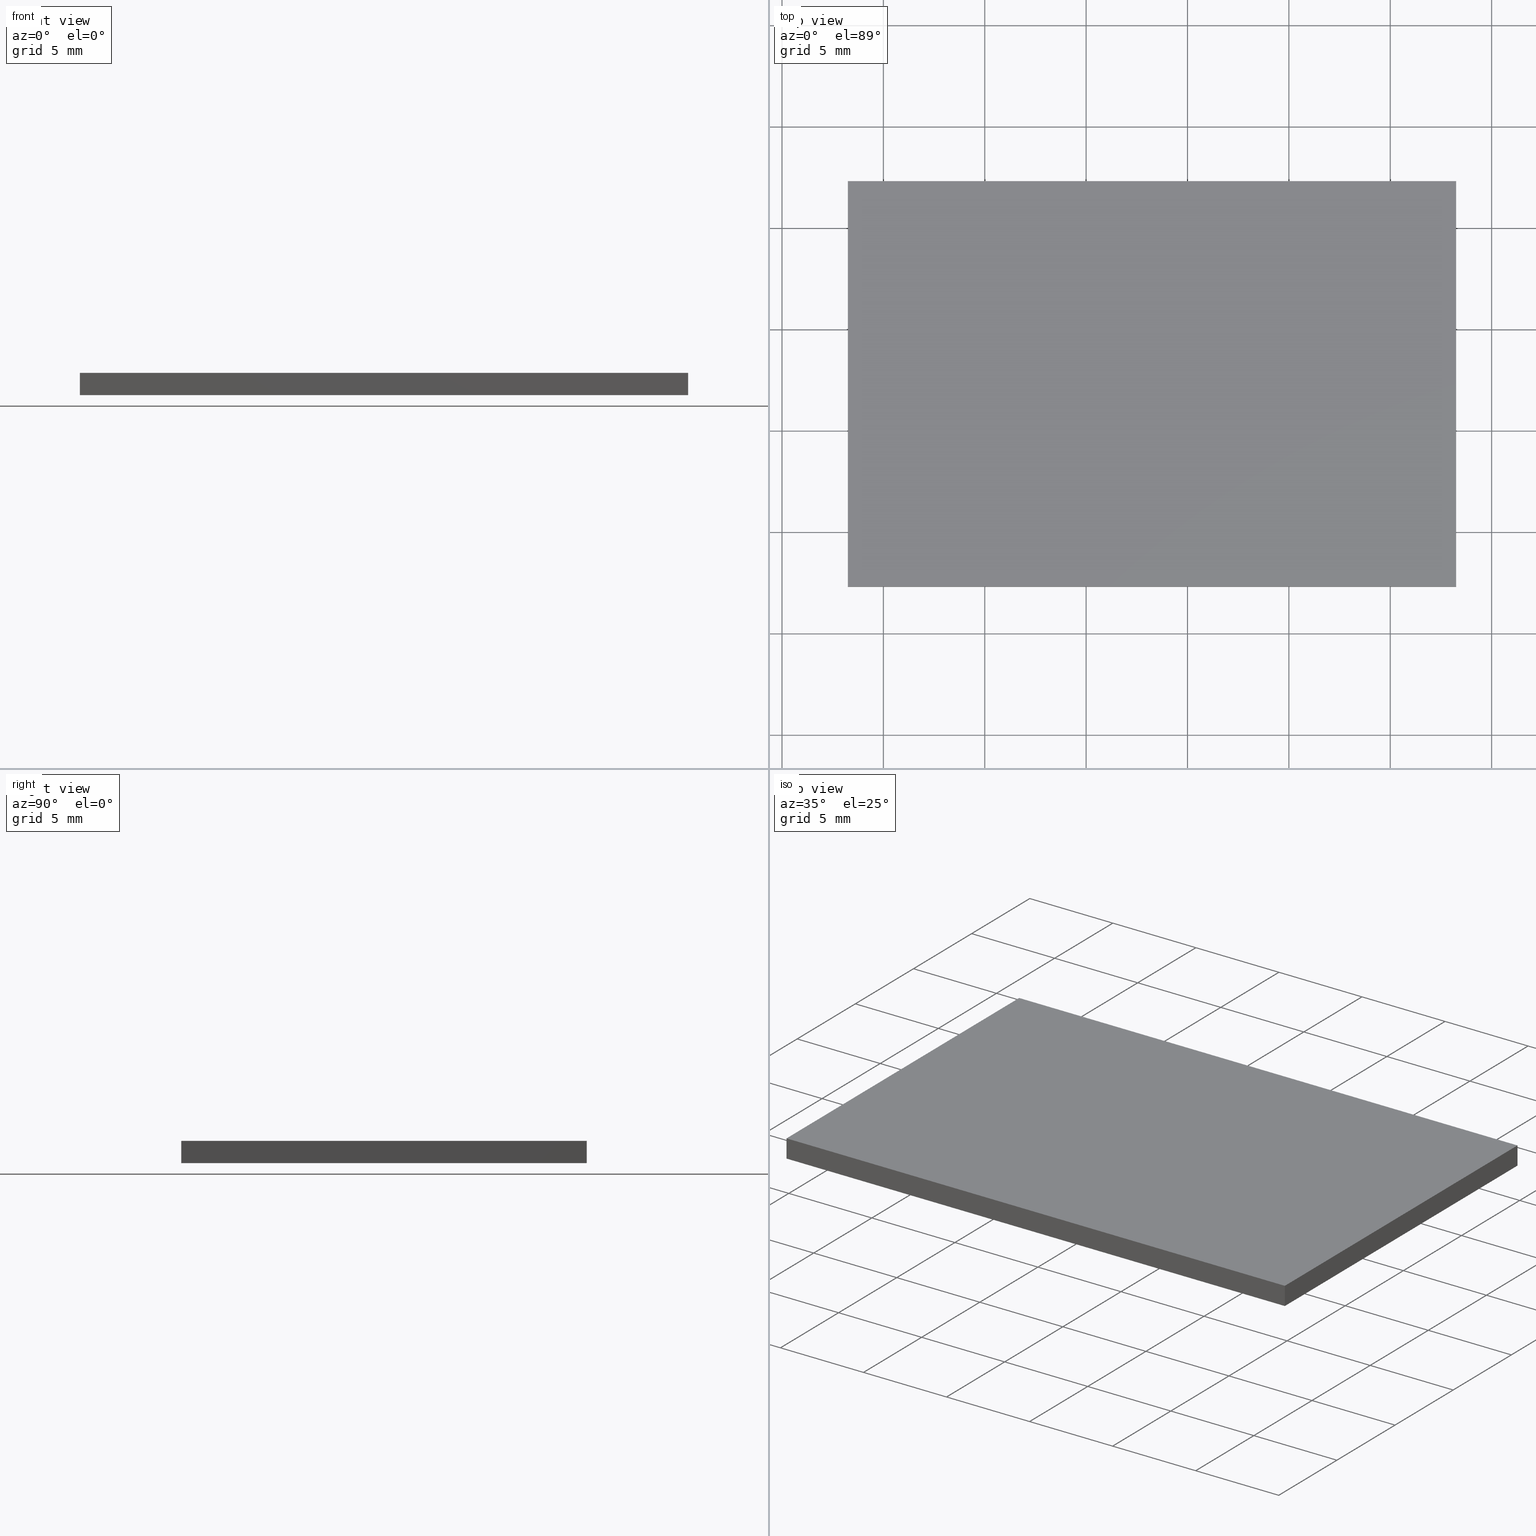
[diagram: canonical four-view strip — front | top / right | iso, engineering-drawing reading convention]
A machine part, canonical four-view strip (front | top / right | iso — engineering-drawing reading convention). The complete STEP part file that produces these views, byte-faithful:
ISO-10303-21;
HEADER;
FILE_DESCRIPTION (( 'STEP AP203' ),
    '1' );
FILE_NAME ('348504.STEP',
    '2019-07-31T07:18:48',
    ( '' ),
    ( '' ),
    'SwSTEP 2.0',
    'SolidWorks 2016',
    '' );
FILE_SCHEMA (( 'CONFIG_CONTROL_DESIGN' ));
ENDSEC;

DATA;
#1 = CARTESIAN_POINT ( 'NONE',  ( 18.24871321396390700, -7.690632713374410100, 0.0000000000000000000 ) ) ;
#2 = CC_DESIGN_SECURITY_CLASSIFICATION ( #266, ( #39 ) ) ;
#3 = ORIENTED_EDGE ( 'NONE', *, *, #36, .T. ) ;
#4 = VERTEX_POINT ( 'NONE', #248 ) ;
#5 = EDGE_CURVE ( 'NONE', #4, #204, #113, .T. ) ;
#6 = VECTOR ( 'NONE', #92, 1000.000000000000000 ) ;
#7 = PERSON_AND_ORGANIZATION_ROLE ( 'design_supplier' ) ;
#8 = APPLICATION_PROTOCOL_DEFINITION ( 'international standard', 'config_control_design', 1994, #156 ) ;
#9 = ORIENTED_EDGE ( 'NONE', *, *, #57, .T. ) ;
#10 = EDGE_LOOP ( 'NONE', ( #313, #280, #281, #107 ) ) ;
#11 = APPROVAL ( #166, 'δָ��' ) ;
#12 = COORDINATED_UNIVERSAL_TIME_OFFSET ( 8, 0, .AHEAD. ) ;
#13 = FACE_OUTER_BOUND ( 'NONE', #10, .T. ) ;
#14 = CC_DESIGN_DATE_AND_TIME_ASSIGNMENT ( #262, #306, ( #101 ) ) ;
#15 = VERTEX_POINT ( 'NONE', #226 ) ;
#16 = VECTOR ( 'NONE', #172, 1000.000000000000000 ) ;
#17 = DIRECTION ( 'NONE',  ( 1.734723475976807100E-016, -1.000000000000000000, 0.0000000000000000000 ) ) ;
#18 = AXIS2_PLACEMENT_3D ( 'NONE', #126, #299, #152 ) ;
#19 = PERSON_AND_ORGANIZATION ( #85, #253 ) ;
#20 = LINE ( 'NONE', #176, #279 ) ;
#21 = EDGE_CURVE ( 'NONE', #289, #79, #159, .T. ) ;
#22 = PLANE ( 'NONE',  #218 ) ;
#23 = CARTESIAN_POINT ( 'NONE',  ( -11.75128678603609700, 12.30936728662558900, 1.100000000000000100 ) ) ;
#24 = ORIENTED_EDGE ( 'NONE', *, *, #157, .F. ) ;
#25 = PERSON_AND_ORGANIZATION ( #85, #253 ) ;
#26 = ORIENTED_EDGE ( 'NONE', *, *, #129, .T. ) ;
#27 = PLANE ( 'NONE',  #155 ) ;
#28 = CC_DESIGN_DATE_AND_TIME_ASSIGNMENT ( #292, #208, ( #162 ) ) ;
#29 = APPLICATION_PROTOCOL_DEFINITION ( 'international standard', 'config_control_design', 1994, #301 ) ;
#30 = CARTESIAN_POINT ( 'NONE',  ( -11.75128678603609300, -7.690632713374410100, 1.100000000000000100 ) ) ;
#31 = LOCAL_TIME ( 15, 18, 48.00000000000000000, #153 ) ;
#32 = PERSON_AND_ORGANIZATION ( #85, #253 ) ;
#33 = LOCAL_TIME ( 15, 18, 48.00000000000000000, #246 ) ;
#34 = ORIENTED_EDGE ( 'NONE', *, *, #42, .F. ) ;
#35 = APPROVAL ( #80, 'δָ��' ) ;
#36 = EDGE_CURVE ( 'NONE', #204, #15, #121, .T. ) ;
#37 = CALENDAR_DATE ( 2019, 31, 7 ) ;
#38 = ORIENTED_EDGE ( 'NONE', *, *, #103, .F. ) ;
#39 = PRODUCT_DEFINITION_FORMATION_WITH_SPECIFIED_SOURCE ( '�κ�', '', #212, .NOT_KNOWN. ) ;
#40 = DATE_AND_TIME ( #236, #215 ) ;
#41 = CARTESIAN_POINT ( 'NONE',  ( 0.0000000000000000000, 0.0000000000000000000, 1.100000000000000100 ) ) ;
#42 = EDGE_CURVE ( 'NONE', #204, #66, #46, .T. ) ;
#43 = CALENDAR_DATE ( 2019, 31, 7 ) ;
#44 = DIRECTION ( 'NONE',  ( -1.000000000000000000, -0.0000000000000000000, -0.0000000000000000000 ) ) ;
#45 = APPROVAL_PERSON_ORGANIZATION ( #112, #169, #249 ) ;
#46 = LINE ( 'NONE', #223, #264 ) ;
#47 = DIRECTION ( 'NONE',  ( -0.0000000000000000000, -0.0000000000000000000, -1.000000000000000000 ) ) ;
#48 = DATE_TIME_ROLE ( 'classification_date' ) ;
#49 = APPLICATION_CONTEXT ( 'configuration controlled 3d designs of mechanical parts and assemblies' ) ;
#50 = LOCAL_TIME ( 15, 18, 48.00000000000000000, #55 ) ;
#51 = DATE_TIME_ROLE ( 'creation_date' ) ;
#52 = MECHANICAL_CONTEXT ( 'NONE', #156, 'mechanical' ) ;
#53 = CC_DESIGN_PERSON_AND_ORGANIZATION_ASSIGNMENT ( #265, #275, ( #130 ) ) ;
#54 = CARTESIAN_POINT ( 'NONE',  ( 0.0000000000000000000, 0.0000000000000000000, 0.0000000000000000000 ) ) ;
#55 = COORDINATED_UNIVERSAL_TIME_OFFSET ( 8, 0, .AHEAD. ) ;
#56 = VECTOR ( 'NONE', #221, 1000.000000000000000 ) ;
#57 = EDGE_CURVE ( 'NONE', #66, #225, #205, .T. ) ;
#58 = APPROVAL_DATE_TIME ( #308, #11 ) ;
#59 = CC_DESIGN_APPROVAL ( #35, ( #39 ) ) ;
#60 = EDGE_CURVE ( 'NONE', #79, #133, #134, .T. ) ;
#61 = PERSON_AND_ORGANIZATION_ROLE ( 'design_supplier' ) ;
#62 = ADVANCED_FACE ( 'NONE', ( #303 ), #267, .F. ) ;
#63 = APPROVAL_PERSON_ORGANIZATION ( #104, #11, #193 ) ;
#64 = COORDINATED_UNIVERSAL_TIME_OFFSET ( 8, 0, .AHEAD. ) ;
#65 = EDGE_LOOP ( 'NONE', ( #77, #213, #196, #91 ) ) ;
#66 = VERTEX_POINT ( 'NONE', #142 ) ;
#67 = ORIENTED_EDGE ( 'NONE', *, *, #21, .F. ) ;
#68 = FACE_OUTER_BOUND ( 'NONE', #287, .T. ) ;
#69 = CC_DESIGN_PERSON_AND_ORGANIZATION_ASSIGNMENT ( #198, #61, ( #290 ) ) ;
#70 = CARTESIAN_POINT ( 'NONE',  ( -11.75128678603609700, 12.30936728662558900, 1.100000000000000100 ) ) ;
#71 = APPROVAL ( #183, 'δָ��' ) ;
#72 = COORDINATED_UNIVERSAL_TIME_OFFSET ( 8, 0, .AHEAD. ) ;
#73 = PERSON_AND_ORGANIZATION ( #85, #253 ) ;
#74 = DIRECTION ( 'NONE',  ( 1.000000000000000000, 0.0000000000000000000, 0.0000000000000000000 ) ) ;
#75 = DIRECTION ( 'NONE',  ( -1.734723475976807100E-016, 1.000000000000000000, -0.0000000000000000000 ) ) ;
#76 = CARTESIAN_POINT ( 'NONE',  ( -11.75128678603609700, 12.30936728662558900, 0.0000000000000000000 ) ) ;
#77 = ORIENTED_EDGE ( 'NONE', *, *, #93, .T. ) ;
#78 = DIRECTION ( 'NONE',  ( 0.0000000000000000000, 0.0000000000000000000, 1.000000000000000000 ) ) ;
#79 = VERTEX_POINT ( 'NONE', #272 ) ;
#80 = APPROVAL_STATUS ( 'not_yet_approved' ) ;
#81 = CC_DESIGN_PERSON_AND_ORGANIZATION_ASSIGNMENT ( #273, #231, ( #39 ) ) ;
#82 =( LENGTH_UNIT ( ) NAMED_UNIT ( * ) SI_UNIT ( .MILLI., .METRE. ) );
#83 = DIRECTION ( 'NONE',  ( 1.000000000000000000, 0.0000000000000000000, 0.0000000000000000000 ) ) ;
#84 = DIRECTION ( 'NONE',  ( 1.734723475976806800E-016, -1.000000000000000000, 0.0000000000000000000 ) ) ;
#85 = PERSON ( 'δָ��', 'δָ��', 'δָ��', ('δָ��'), ('δָ��'), ('δָ��') ) ;
#86 = FACE_OUTER_BOUND ( 'NONE', #259, .T. ) ;
#87 = ORIENTED_EDGE ( 'NONE', *, *, #157, .T. ) ;
#88 = CALENDAR_DATE ( 2019, 31, 7 ) ;
#89 = CC_DESIGN_APPROVAL ( #71, ( #162 ) ) ;
#90 = DESIGN_CONTEXT ( 'detailed design', #209, 'design' ) ;
#91 = ORIENTED_EDGE ( 'NONE', *, *, #122, .T. ) ;
#92 = DIRECTION ( 'NONE',  ( 1.734723475976807100E-016, -1.000000000000000000, 0.0000000000000000000 ) ) ;
#93 = EDGE_CURVE ( 'NONE', #133, #15, #168, .T. ) ;
#94 = DIRECTION ( 'NONE',  ( -1.734723475976806800E-016, 1.000000000000000000, 0.0000000000000000000 ) ) ;
#95 = DIRECTION ( 'NONE',  ( -1.000000000000000000, -0.0000000000000000000, -0.0000000000000000000 ) ) ;
#96 = DATE_AND_TIME ( #188, #31 ) ;
#97 = ORIENTED_EDGE ( 'NONE', *, *, #178, .T. ) ;
#98 = DIRECTION ( 'NONE',  ( -1.000000000000000000, -1.734723475976806800E-016, 0.0000000000000000000 ) ) ;
#99 = DIRECTION ( 'NONE',  ( -0.0000000000000000000, 0.0000000000000000000, 1.000000000000000000 ) ) ;
#100 = UNCERTAINTY_MEASURE_WITH_UNIT (LENGTH_MEASURE( 1.000000000000000100E-005 ), #82, 'distance_accuracy_value', 'NONE');
#101 = SECURITY_CLASSIFICATION ( '', '', #240 ) ;
#102 = CARTESIAN_POINT ( 'NONE',  ( -11.75128678603609300, -7.690632713374410100, 1.100000000000000100 ) ) ;
#103 = EDGE_CURVE ( 'NONE', #15, #225, #217, .T. ) ;
#104 = PERSON_AND_ORGANIZATION ( #85, #253 ) ;
#105 = LINE ( 'NONE', #124, #161 ) ;
#106 = LOCAL_TIME ( 15, 18, 48.00000000000000000, #241 ) ;
#107 = ORIENTED_EDGE ( 'NONE', *, *, #21, .T. ) ;
#108 = APPROVAL_DATE_TIME ( #268, #250 ) ;
#109 = CC_DESIGN_PERSON_AND_ORGANIZATION_ASSIGNMENT ( #19, #7, ( #39 ) ) ;
#110 = PERSON_AND_ORGANIZATION_ROLE ( 'classification_officer' ) ;
#111 = PERSON_AND_ORGANIZATION ( #85, #253 ) ;
#112 = PERSON_AND_ORGANIZATION ( #85, #253 ) ;
#113 = LINE ( 'NONE', #201, #237 ) ;
#114 = CC_DESIGN_SECURITY_CLASSIFICATION ( #101, ( #290 ) ) ;
#115 = ADVANCED_BREP_SHAPE_REPRESENTATION ( '348504', ( #245, #132 ), #304 ) ;
#116 = APPROVAL_DATE_TIME ( #191, #71 ) ;
#117 = DIRECTION ( 'NONE',  ( 1.000000000000000000, 1.734723475976806800E-016, -0.0000000000000000000 ) ) ;
#118 = PERSON_AND_ORGANIZATION ( #85, #253 ) ;
#119 = CARTESIAN_POINT ( 'NONE',  ( -11.75128678603609300, -7.690632713374410100, 1.100000000000000100 ) ) ;
#120 = DATE_AND_TIME ( #195, #312 ) ;
#121 = LINE ( 'NONE', #173, #261 ) ;
#122 = EDGE_CURVE ( 'NONE', #4, #133, #105, .T. ) ;
#123 = DIRECTION ( 'NONE',  ( 1.000000000000000000, 0.0000000000000000000, 0.0000000000000000000 ) ) ;
#124 = CARTESIAN_POINT ( 'NONE',  ( 18.24871321396390700, -7.690632713374410100, 1.100000000000000100 ) ) ;
#125 = APPLICATION_PROTOCOL_DEFINITION ( 'international standard', 'config_control_design', 1994, #209 ) ;
#126 = CARTESIAN_POINT ( 'NONE',  ( 0.0000000000000000000, 0.0000000000000000000, 0.0000000000000000000 ) ) ;
#127 = AXIS2_PLACEMENT_3D ( 'NONE', #30, #255, #234 ) ;
#128 = APPROVAL_STATUS ( 'not_yet_approved' ) ;
#129 = EDGE_CURVE ( 'NONE', #289, #4, #293, .T. ) ;
#130 = PRODUCT ( '348504', '348504', '', ( #278 ) ) ;
#131 = APPROVAL_PERSON_ORGANIZATION ( #25, #260, #148 ) ;
#132 = AXIS2_PLACEMENT_3D ( 'NONE', #54, #78, #83 ) ;
#133 = VERTEX_POINT ( 'NONE', #1 ) ;
#134 = LINE ( 'NONE', #314, #16 ) ;
#135 = LOCAL_TIME ( 15, 18, 48.00000000000000000, #310 ) ;
#136 = FACE_OUTER_BOUND ( 'NONE', #158, .T. ) ;
#137 = ORIENTED_EDGE ( 'NONE', *, *, #5, .T. ) ;
#138 = APPROVAL_PERSON_ORGANIZATION ( #164, #35, #185 ) ;
#139 = ORIENTED_EDGE ( 'NONE', *, *, #60, .F. ) ;
#140 = CC_DESIGN_DATE_AND_TIME_ASSIGNMENT ( #120, #48, ( #266 ) ) ;
#141 = LOCAL_TIME ( 15, 18, 48.00000000000000000, #12 ) ;
#142 = CARTESIAN_POINT ( 'NONE',  ( -11.75128678603609700, 12.30936728662558900, 1.100000000000000100 ) ) ;
#143 = PLANE ( 'NONE',  #222 ) ;
#144 = EDGE_LOOP ( 'NONE', ( #87, #67, #189, #9 ) ) ;
#145 = DIRECTION ( 'NONE',  ( -0.0000000000000000000, -0.0000000000000000000, -1.000000000000000000 ) ) ;
#146 = ORIENTED_EDGE ( 'NONE', *, *, #57, .F. ) ;
#147 = CC_DESIGN_APPROVAL ( #260, ( #315 ) ) ;
#148 = APPROVAL_ROLE ( '' ) ;
#149 =( NAMED_UNIT ( * ) SI_UNIT ( $, .STERADIAN. ) SOLID_ANGLE_UNIT ( ) );
#150 = PERSON_AND_ORGANIZATION_ROLE ( 'creator' ) ;
#151 = APPROVAL_DATE_TIME ( #257, #260 ) ;
#152 = DIRECTION ( 'NONE',  ( 1.000000000000000000, 0.0000000000000000000, 0.0000000000000000000 ) ) ;
#153 = COORDINATED_UNIVERSAL_TIME_OFFSET ( 8, 0, .AHEAD. ) ;
#154 = VECTOR ( 'NONE', #123, 1000.000000000000000 ) ;
#155 = AXIS2_PLACEMENT_3D ( 'NONE', #300, #99, #230 ) ;
#156 = APPLICATION_CONTEXT ( 'configuration controlled 3d designs of mechanical parts and assemblies' ) ;
#157 = EDGE_CURVE ( 'NONE', #225, #79, #20, .T. ) ;
#158 = EDGE_LOOP ( 'NONE', ( #24, #38, #274, #139 ) ) ;
#159 = LINE ( 'NONE', #119, #197 ) ;
#160 = CC_DESIGN_PERSON_AND_ORGANIZATION_ASSIGNMENT ( #187, #110, ( #101 ) ) ;
#161 = VECTOR ( 'NONE', #145, 1000.000000000000000 ) ;
#162 = PRODUCT_DEFINITION ( 'δ֪', '', #39, #305 ) ;
#163 = PERSON_AND_ORGANIZATION_ROLE ( 'creator' ) ;
#164 = PERSON_AND_ORGANIZATION ( #85, #253 ) ;
#165 = LINE ( 'NONE', #23, #6 ) ;
#166 = APPROVAL_STATUS ( 'not_yet_approved' ) ;
#167 = APPROVAL_ROLE ( '' ) ;
#168 = LINE ( 'NONE', #202, #177 ) ;
#169 = APPROVAL ( #251, 'δָ��' ) ;
#170 = LOCAL_TIME ( 15, 18, 48.00000000000000000, #239 ) ;
#171 = ADVANCED_FACE ( 'NONE', ( #86 ), #22, .F. ) ;
#172 = DIRECTION ( 'NONE',  ( 1.000000000000000000, 0.0000000000000000000, 0.0000000000000000000 ) ) ;
#173 = CARTESIAN_POINT ( 'NONE',  ( 18.24871321396390300, 12.30936728662558900, 1.100000000000000100 ) ) ;
#174 = CC_DESIGN_PERSON_AND_ORGANIZATION_ASSIGNMENT ( #229, #206, ( #162 ) ) ;
#175 = PRODUCT_DEFINITION_SHAPE ( 'NONE', 'NONE',  #162 ) ;
#176 = CARTESIAN_POINT ( 'NONE',  ( -11.75128678603609700, 12.30936728662558900, 0.0000000000000000000 ) ) ;
#177 = VECTOR ( 'NONE', #247, 1000.000000000000000 ) ;
#178 = EDGE_CURVE ( 'NONE', #66, #289, #165, .T. ) ;
#179 = DIRECTION ( 'NONE',  ( 0.0000000000000000000, -0.0000000000000000000, -1.000000000000000000 ) ) ;
#180 = SECURITY_CLASSIFICATION_LEVEL ( 'unclassified' ) ;
#181 = APPROVAL_ROLE ( '' ) ;
#182 = PRODUCT_RELATED_PRODUCT_CATEGORY ( 'detail', '', ( #130 ) ) ;
#183 = APPROVAL_STATUS ( 'not_yet_approved' ) ;
#184 = AXIS2_PLACEMENT_3D ( 'NONE', #210, #98, #84 ) ;
#185 = APPROVAL_ROLE ( '' ) ;
#186 = APPLICATION_PROTOCOL_DEFINITION ( 'international standard', 'config_control_design', 1994, #49 ) ;
#187 = PERSON_AND_ORGANIZATION ( #85, #253 ) ;
#188 = CALENDAR_DATE ( 2019, 31, 7 ) ;
#189 = ORIENTED_EDGE ( 'NONE', *, *, #178, .F. ) ;
#190 = PERSON_AND_ORGANIZATION ( #85, #253 ) ;
#191 = DATE_AND_TIME ( #252, #135 ) ;
#192 = CC_DESIGN_PERSON_AND_ORGANIZATION_ASSIGNMENT ( #73, #203, ( #266 ) ) ;
#193 = APPROVAL_ROLE ( '' ) ;
#194 = APPROVAL_PERSON_ORGANIZATION ( #111, #250, #167 ) ;
#195 = CALENDAR_DATE ( 2019, 31, 7 ) ;
#196 = ORIENTED_EDGE ( 'NONE', *, *, #5, .F. ) ;
#197 = VECTOR ( 'NONE', #294, 1000.000000000000000 ) ;
#198 = PERSON_AND_ORGANIZATION ( #85, #253 ) ;
#199 = DIRECTION ( 'NONE',  ( 0.0000000000000000000, -1.000000000000000000, 0.0000000000000000000 ) ) ;
#200 = DIRECTION ( 'NONE',  ( -0.0000000000000000000, 0.0000000000000000000, 1.000000000000000000 ) ) ;
#201 = CARTESIAN_POINT ( 'NONE',  ( 18.24871321396390300, 12.30936728662558900, 1.100000000000000100 ) ) ;
#202 = CARTESIAN_POINT ( 'NONE',  ( 18.24871321396390300, 12.30936728662558900, 0.0000000000000000000 ) ) ;
#203 = PERSON_AND_ORGANIZATION_ROLE ( 'classification_officer' ) ;
#204 = VERTEX_POINT ( 'NONE', #219 ) ;
#205 = LINE ( 'NONE', #244, #56 ) ;
#206 = PERSON_AND_ORGANIZATION_ROLE ( 'creator' ) ;
#207 = PERSON_AND_ORGANIZATION ( #85, #253 ) ;
#208 = DATE_TIME_ROLE ( 'creation_date' ) ;
#209 = APPLICATION_CONTEXT ( 'configuration controlled 3d designs of mechanical parts and assemblies' ) ;
#210 = CARTESIAN_POINT ( 'NONE',  ( 18.24871321396390300, 12.30936728662558900, 1.100000000000000100 ) ) ;
#211 = COORDINATED_UNIVERSAL_TIME_OFFSET ( 8, 0, .AHEAD. ) ;
#212 = PRODUCT ( '348504', '348504', '', ( #52 ) ) ;
#213 = ORIENTED_EDGE ( 'NONE', *, *, #36, .F. ) ;
#214 = VECTOR ( 'NONE', #44, 1000.000000000000000 ) ;
#215 = LOCAL_TIME ( 15, 18, 48.00000000000000000, #72 ) ;
#216 = FACE_OUTER_BOUND ( 'NONE', #65, .T. ) ;
#217 = LINE ( 'NONE', #76, #214 ) ;
#218 = AXIS2_PLACEMENT_3D ( 'NONE', #70, #199, #179 ) ;
#219 = CARTESIAN_POINT ( 'NONE',  ( 18.24871321396390300, 12.30936728662558900, 1.100000000000000100 ) ) ;
#220 = CALENDAR_DATE ( 2019, 31, 7 ) ;
#221 = DIRECTION ( 'NONE',  ( -0.0000000000000000000, -0.0000000000000000000, -1.000000000000000000 ) ) ;
#222 = AXIS2_PLACEMENT_3D ( 'NONE', #41, #200, #74 ) ;
#223 = CARTESIAN_POINT ( 'NONE',  ( -11.75128678603609700, 12.30936728662558900, 1.100000000000000100 ) ) ;
#224 = AXIS2_PLACEMENT_3D ( 'NONE', #311, #117, #94 ) ;
#225 = VERTEX_POINT ( 'NONE', #269 ) ;
#226 = CARTESIAN_POINT ( 'NONE',  ( 18.24871321396390300, 12.30936728662558900, 0.0000000000000000000 ) ) ;
#227 = APPROVAL_DATE_TIME ( #288, #169 ) ;
#228 = ORIENTED_EDGE ( 'NONE', *, *, #103, .T. ) ;
#229 = PERSON_AND_ORGANIZATION ( #85, #253 ) ;
#230 = DIRECTION ( 'NONE',  ( 1.000000000000000000, 0.0000000000000000000, 0.0000000000000000000 ) ) ;
#231 = PERSON_AND_ORGANIZATION_ROLE ( 'creator' ) ;
#232 = APPROVAL_STATUS ( 'not_yet_approved' ) ;
#233 = CALENDAR_DATE ( 2019, 31, 7 ) ;
#234 = DIRECTION ( 'NONE',  ( 0.0000000000000000000, -0.0000000000000000000, 1.000000000000000000 ) ) ;
#235 = PLANE ( 'NONE',  #127 ) ;
#236 = CALENDAR_DATE ( 2019, 31, 7 ) ;
#237 = VECTOR ( 'NONE', #75, 1000.000000000000000 ) ;
#238 = CC_DESIGN_PERSON_AND_ORGANIZATION_ASSIGNMENT ( #32, #150, ( #315 ) ) ;
#239 = COORDINATED_UNIVERSAL_TIME_OFFSET ( 8, 0, .AHEAD. ) ;
#240 = SECURITY_CLASSIFICATION_LEVEL ( 'unclassified' ) ;
#241 = COORDINATED_UNIVERSAL_TIME_OFFSET ( 8, 0, .AHEAD. ) ;
#242 = ADVANCED_FACE ( 'NONE', ( #68 ), #143, .T. ) ;
#243 = ADVANCED_FACE ( 'NONE', ( #216 ), #298, .F. ) ;
#244 = CARTESIAN_POINT ( 'NONE',  ( -11.75128678603609700, 12.30936728662558900, 1.100000000000000100 ) ) ;
#245 = MANIFOLD_SOLID_BREP ( '͹̨-����1', #263 ) ;
#246 = COORDINATED_UNIVERSAL_TIME_OFFSET ( 8, 0, .AHEAD. ) ;
#247 = DIRECTION ( 'NONE',  ( -1.734723475976807100E-016, 1.000000000000000000, -0.0000000000000000000 ) ) ;
#248 = CARTESIAN_POINT ( 'NONE',  ( 18.24871321396390700, -7.690632713374410100, 1.100000000000000100 ) ) ;
#249 = APPROVAL_ROLE ( '' ) ;
#250 = APPROVAL ( #232, 'δָ��' ) ;
#251 = APPROVAL_STATUS ( 'not_yet_approved' ) ;
#252 = CALENDAR_DATE ( 2019, 31, 7 ) ;
#253 = ORGANIZATION ( 'δָ��', 'δָ��', '' ) ;
#254 = PERSON_AND_ORGANIZATION_ROLE ( 'design_owner' ) ;
#255 = DIRECTION ( 'NONE',  ( 0.0000000000000000000, 1.000000000000000000, 0.0000000000000000000 ) ) ;
#256 = CC_DESIGN_APPROVAL ( #11, ( #101 ) ) ;
#257 = DATE_AND_TIME ( #37, #170 ) ;
#258 = CC_DESIGN_PERSON_AND_ORGANIZATION_ASSIGNMENT ( #190, #254, ( #212 ) ) ;
#259 = EDGE_LOOP ( 'NONE', ( #228, #146, #34, #3 ) ) ;
#260 = APPROVAL ( #128, 'δָ��' ) ;
#261 = VECTOR ( 'NONE', #47, 1000.000000000000000 ) ;
#262 = DATE_AND_TIME ( #43, #50 ) ;
#263 = CLOSED_SHELL ( 'NONE', ( #62, #286, #243, #171, #242, #309 ) ) ;
#264 = VECTOR ( 'NONE', #95, 1000.000000000000000 ) ;
#265 = PERSON_AND_ORGANIZATION ( #85, #253 ) ;
#266 = SECURITY_CLASSIFICATION ( '', '', #180 ) ;
#267 = PLANE ( 'NONE',  #224 ) ;
#268 = DATE_AND_TIME ( #233, #141 ) ;
#269 = CARTESIAN_POINT ( 'NONE',  ( -11.75128678603609700, 12.30936728662558900, 0.0000000000000000000 ) ) ;
#270 = CC_DESIGN_APPROVAL ( #169, ( #266 ) ) ;
#271 = CC_DESIGN_DATE_AND_TIME_ASSIGNMENT ( #40, #51, ( #315 ) ) ;
#272 = CARTESIAN_POINT ( 'NONE',  ( -11.75128678603609300, -7.690632713374410100, 0.0000000000000000000 ) ) ;
#273 = PERSON_AND_ORGANIZATION ( #85, #253 ) ;
#274 = ORIENTED_EDGE ( 'NONE', *, *, #93, .F. ) ;
#275 = PERSON_AND_ORGANIZATION_ROLE ( 'design_owner' ) ;
#276 =( NAMED_UNIT ( * ) PLANE_ANGLE_UNIT ( ) SI_UNIT ( $, .RADIAN. ) );
#277 = CC_DESIGN_PERSON_AND_ORGANIZATION_ASSIGNMENT ( #118, #163, ( #290 ) ) ;
#278 = MECHANICAL_CONTEXT ( 'NONE', #301, 'mechanical' ) ;
#279 = VECTOR ( 'NONE', #17, 1000.000000000000000 ) ;
#280 = ORIENTED_EDGE ( 'NONE', *, *, #122, .F. ) ;
#281 = ORIENTED_EDGE ( 'NONE', *, *, #129, .F. ) ;
#282 = CC_DESIGN_APPROVAL ( #250, ( #290 ) ) ;
#283 = LOCAL_TIME ( 15, 18, 48.00000000000000000, #211 ) ;
#284 = SHAPE_DEFINITION_REPRESENTATION ( #307, #115 ) ;
#285 = PRODUCT_RELATED_PRODUCT_CATEGORY ( 'detail', '', ( #212 ) ) ;
#286 = ADVANCED_FACE ( 'NONE', ( #13 ), #235, .F. ) ;
#287 = EDGE_LOOP ( 'NONE', ( #97, #26, #137, #297 ) ) ;
#288 = DATE_AND_TIME ( #296, #106 ) ;
#289 = VERTEX_POINT ( 'NONE', #102 ) ;
#290 = PRODUCT_DEFINITION_FORMATION_WITH_SPECIFIED_SOURCE ( '�κ�', '', #130, .NOT_KNOWN. ) ;
#291 = APPROVAL_PERSON_ORGANIZATION ( #207, #71, #181 ) ;
#292 = DATE_AND_TIME ( #88, #33 ) ;
#293 = LINE ( 'NONE', #295, #154 ) ;
#294 = DIRECTION ( 'NONE',  ( -0.0000000000000000000, -0.0000000000000000000, -1.000000000000000000 ) ) ;
#295 = CARTESIAN_POINT ( 'NONE',  ( -11.75128678603609300, -7.690632713374410100, 1.100000000000000100 ) ) ;
#296 = CALENDAR_DATE ( 2019, 31, 7 ) ;
#297 = ORIENTED_EDGE ( 'NONE', *, *, #42, .T. ) ;
#298 = PLANE ( 'NONE',  #184 ) ;
#299 = DIRECTION ( 'NONE',  ( 0.0000000000000000000, 0.0000000000000000000, 1.000000000000000000 ) ) ;
#300 = CARTESIAN_POINT ( 'NONE',  ( 0.0000000000000000000, 0.0000000000000000000, 0.0000000000000000000 ) ) ;
#301 = APPLICATION_CONTEXT ( 'configuration controlled 3d designs of mechanical parts and assemblies' ) ;
#302 = APPROVAL_DATE_TIME ( #96, #35 ) ;
#303 = FACE_OUTER_BOUND ( 'NONE', #144, .T. ) ;
#304 =( GEOMETRIC_REPRESENTATION_CONTEXT ( 3 ) GLOBAL_UNCERTAINTY_ASSIGNED_CONTEXT ( ( #100 ) ) GLOBAL_UNIT_ASSIGNED_CONTEXT ( ( #82, #276, #149 ) ) REPRESENTATION_CONTEXT ( 'NONE', 'WORKASPACE' ) );
#305 = DESIGN_CONTEXT ( 'detailed design', #49, 'design' ) ;
#306 = DATE_TIME_ROLE ( 'classification_date' ) ;
#307 = PRODUCT_DEFINITION_SHAPE ( 'NONE', 'NONE',  #315 ) ;
#308 = DATE_AND_TIME ( #220, #283 ) ;
#309 = ADVANCED_FACE ( 'NONE', ( #136 ), #27, .F. ) ;
#310 = COORDINATED_UNIVERSAL_TIME_OFFSET ( 8, 0, .AHEAD. ) ;
#311 = CARTESIAN_POINT ( 'NONE',  ( -11.75128678603609700, 12.30936728662558900, 1.100000000000000100 ) ) ;
#312 = LOCAL_TIME ( 15, 18, 48.00000000000000000, #64 ) ;
#313 = ORIENTED_EDGE ( 'NONE', *, *, #60, .T. ) ;
#314 = CARTESIAN_POINT ( 'NONE',  ( -11.75128678603609300, -7.690632713374410100, 0.0000000000000000000 ) ) ;
#315 = PRODUCT_DEFINITION ( 'δ֪', '', #290, #90 ) ;
ENDSEC;
END-ISO-10303-21;
